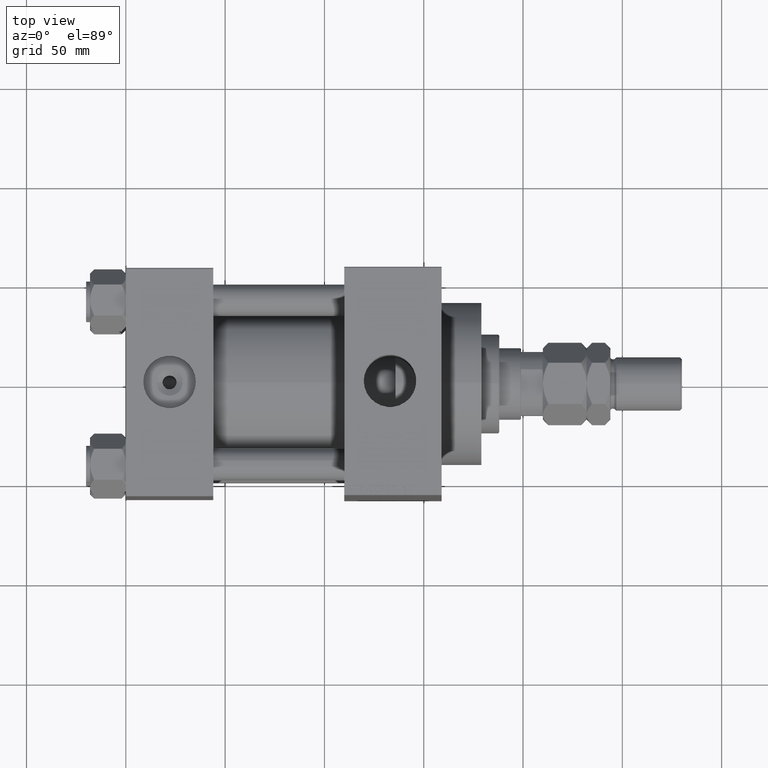
[diagram: clean part render]
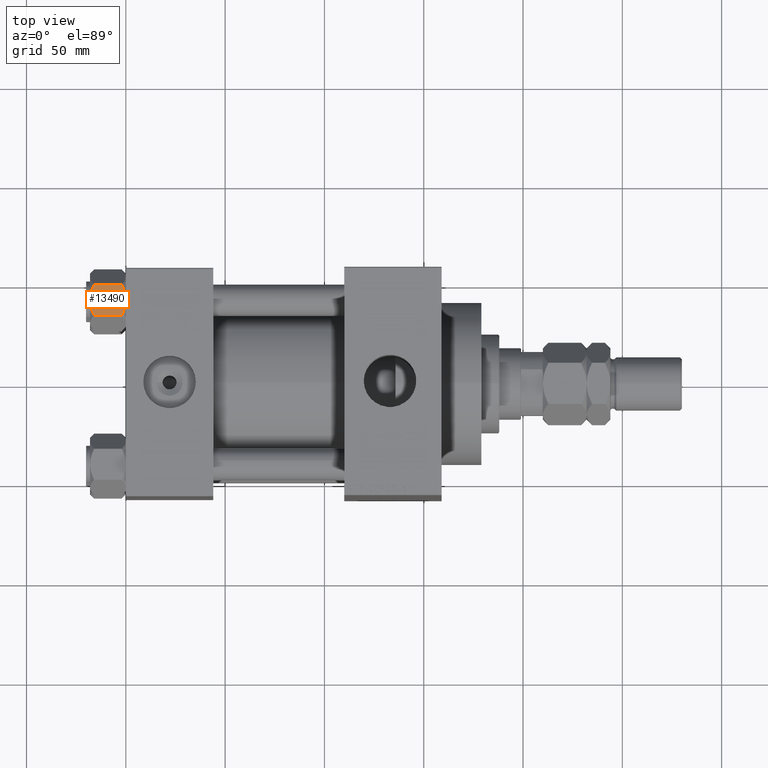
[diagram: same view with one face highlighted and labeled with its STEP entity id]
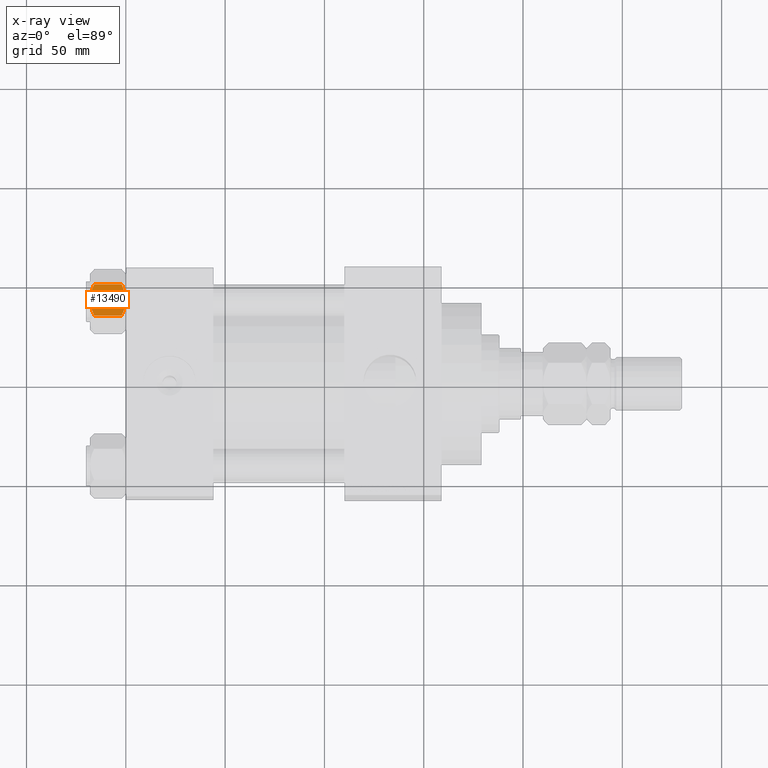
[diagram: x-ray of the same camera — body ghosted, the highlighted face saturated]
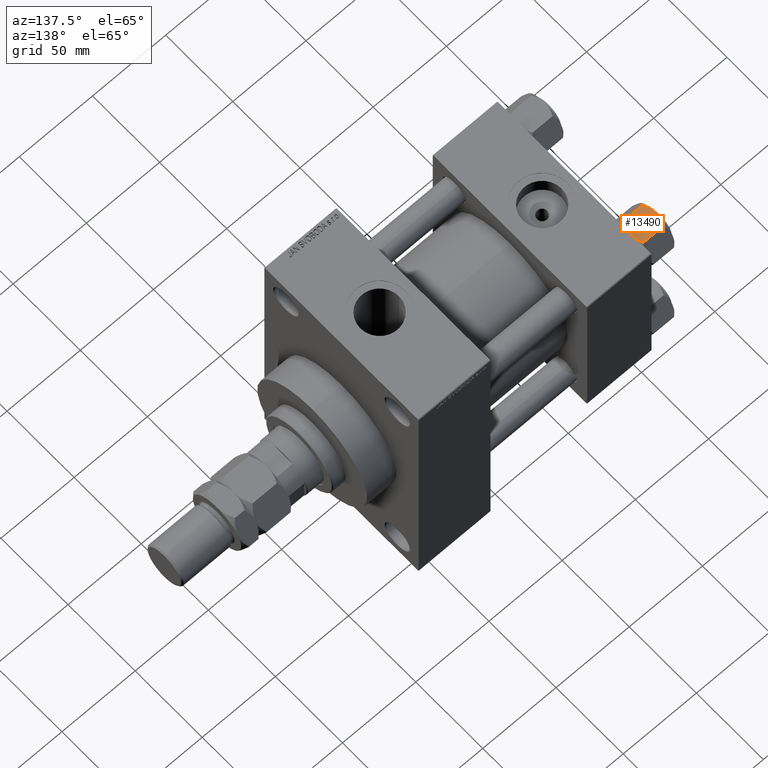
[diagram: same view with one face highlighted and labeled with its STEP entity id]
A machine part, top view. The second image highlights one B-rep face of the part: STEP entity #13490.
The next image is the same camera in x-ray: the body ghosted, the highlighted face saturated — about 0% of this face is hidden behind the body in this view.
A second angle (auxiliary view) of the same face is appended — the face is thin or edge-on in the first view.
In plain terms, the highlighted planar face has unit normal (0, -0, -1).
Its self-contained STEP definition (entity closure, byte-faithful):
#862 = EDGE_CURVE ( 'NONE', #28155, #25244, #11949, .T. ) ;
#1418 = CARTESIAN_POINT ( 'NONE',  ( -7.622943475354647447, -13.52731680711293727, -16.00000000000000000 ) ) ;
#1665 = CARTESIAN_POINT ( 'NONE',  ( -0.3330234424833808937, -13.52731680711293372, -18.00000000000000711 ) ) ;
#2046 = LINE ( 'NONE', #2781, #44255 ) ;
#2781 = CARTESIAN_POINT ( 'NONE',  ( 7.810000000000002274, -13.52731680711293372, -18.00000000000000000 ) ) ;
#3211 = CARTESIAN_POINT ( 'NONE',  ( 7.030888348548065103, -13.52731680711293194, -16.29066211644969897 ) ) ;
#4917 = CARTESIAN_POINT ( 'NONE',  ( -7.030203932307581560, -13.52731680711293727, -16.29099812210860065 ) ) ;
#5002 = ORIENTED_EDGE ( 'NONE', *, *, #44592, .F. ) ;
#5147 = VECTOR ( 'NONE', #21177, 1000.000000000000000 ) ;
#5148 = CARTESIAN_POINT ( 'NONE',  ( -3.287826776903149728, -13.52731680711293727, -17.61954155462466076 ) ) ;
#5502 = B_SPLINE_CURVE_WITH_KNOTS ( 'NONE', 3,
 ( #14585, #6832, #18321, #22327, #33540, #29792, #10837, #26536, #34275, #12069, #15076, #35009 ),
 .UNSPECIFIED., .F., .F.,
 ( 4, 2, 2, 2, 2, 4 ),
 ( 0.02774433486126546416, 0.02873404020403550266, 0.02972374554680554115, 0.03170315623234561814, 0.03368256691788569512, 0.03566197760342577211 ),
 .UNSPECIFIED. ) ;
#5509 = EDGE_CURVE ( 'NONE', #29761, #26828, #33138, .T. ) ;
#5660 = CARTESIAN_POINT ( 'NONE',  ( 7.622943475354652776, -13.52731680711293372, -16.00000000000000000 ) ) ;
#6832 = CARTESIAN_POINT ( 'NONE',  ( 0.3330234424833860007, -13.52731680711293727, 1.736982230502816853E-15 ) ) ;
#6863 = EDGE_CURVE ( 'NONE', #21072, #39006, #16112, .T. ) ;
#7401 = EDGE_CURVE ( 'NONE', #39271, #18278, #31182, .T. ) ;
#7428 = CARTESIAN_POINT ( 'NONE',  ( -7.809999999999999609, -13.52731680711293727, -16.00000000000000000 ) ) ;
#7732 = DIRECTION ( 'NONE',  ( -1.000000000000000000, -2.221156819432531199E-16, 0.000000000000000000 ) ) ;
#8321 = B_SPLINE_CURVE_WITH_KNOTS ( 'NONE', 3,
 ( #21931, #3211, #48832, #14686, #29899, #45097, #28908, #44107 ),
 .UNSPECIFIED., .F., .F.,
 ( 4, 2, 2, 4 ),
 ( 0.01980594295952729095, 0.02179054093496183078, 0.02377513891039637062, 0.02774433486126545376 ),
 .UNSPECIFIED. ) ;
#8487 = CARTESIAN_POINT ( 'NONE',  ( -7.622943475354647447, -13.52731680711293727, -16.00000000000000000 ) ) ;
#8498 = CARTESIAN_POINT ( 'NONE',  ( -2.638177715023105385, -13.52731680711294082, -0.2001540676698838062 ) ) ;
#8578 = EDGE_CURVE ( 'NONE', #18278, #32897, #8321, .T. ) ;
#8642 = VECTOR ( 'NONE', #38137, 1000.000000000000000 ) ;
#10154 = ORIENTED_EDGE ( 'NONE', *, *, #7401, .F. ) ;
#10837 = CARTESIAN_POINT ( 'NONE',  ( 3.287826776903156833, -13.52731680711293194, -0.3804584453753362960 ) ) ;
#10855 = ORIENTED_EDGE ( 'NONE', *, *, #43405, .F. ) ;
#11507 = CARTESIAN_POINT ( 'NONE',  ( -4.553769687922305742, -13.52731680711294082, -0.7327291995145158721 ) ) ;
#11949 = LINE ( 'NONE', #23423, #8642 ) ;
#12002 = CARTESIAN_POINT ( 'NONE',  ( -7.622943475354647447, -13.52731680711293727, -2.000000000000000000 ) ) ;
#12069 = CARTESIAN_POINT ( 'NONE',  ( 6.422751913021828685, -13.52731680711293549, -1.436509110925896948 ) ) ;
#13214 = ORIENTED_EDGE ( 'NONE', *, *, #8578, .F. ) ;
#13490 = ADVANCED_FACE ( 'NONE', ( #14167 ), #17409, .F. ) ;
#14167 = FACE_OUTER_BOUND ( 'NONE', #32334, .T. ) ;
#14585 = CARTESIAN_POINT ( 'NONE',  ( 3.004629197474319246E-15, -13.52731680711293727, 0.000000000000000000 ) ) ;
#14686 = CARTESIAN_POINT ( 'NONE',  ( 5.189513245496335969, -13.52731680711293194, -17.04988915682674033 ) ) ;
#15076 = CARTESIAN_POINT ( 'NONE',  ( 7.030203932307590442, -13.52731680711293727, -1.709001877891394017 ) ) ;
#16112 = LINE ( 'NONE', #23839, #46965 ) ;
#16392 = CARTESIAN_POINT ( 'NONE',  ( -1.333889873825130579, -13.52731680711293549, -17.93843358996560866 ) ) ;
#17409 = PLANE ( 'NONE',  #46353 ) ;
#18278 = VERTEX_POINT ( 'NONE', #5660 ) ;
#18321 = CARTESIAN_POINT ( 'NONE',  ( 0.6693083573771232420, -13.52731680711293372, -0.01249333081107902900 ) ) ;
#18569 = EDGE_CURVE ( 'NONE', #39271, #25244, #2046, .T. ) ;
#21072 = VERTEX_POINT ( 'NONE', #34123 ) ;
#21177 = DIRECTION ( 'NONE',  ( -0.000000000000000000, -0.000000000000000000, 1.000000000000000000 ) ) ;
#21431 = LINE ( 'NONE', #29385, #5147 ) ;
#21931 = CARTESIAN_POINT ( 'NONE',  ( 7.622943475354652776, -13.52731680711293372, -16.00000000000000000 ) ) ;
#22327 = CARTESIAN_POINT ( 'NONE',  ( 1.333889873825135686, -13.52731680711293549, -0.06156641003439144999 ) ) ;
#22490 = CARTESIAN_POINT ( 'NONE',  ( 7.810000000000002274, -13.52731680711293372, -16.00000000000000000 ) ) ;
#23423 = CARTESIAN_POINT ( 'NONE',  ( 7.810000000000002274, -13.52731680711293372, -1.999999999999998224 ) ) ;
#23678 = CARTESIAN_POINT ( 'NONE',  ( 7.810000000000002274, -13.52731680711293372, -16.00000000000000000 ) ) ;
#23727 = CARTESIAN_POINT ( 'NONE',  ( -1.335584685993413956, -13.52731680711294082, 1.666960840196463265E-15 ) ) ;
#23839 = CARTESIAN_POINT ( 'NONE',  ( 7.810000000000002274, -13.52731680711293372, -1.999999999999998224 ) ) ;
#23885 = CARTESIAN_POINT ( 'NONE',  ( -6.422751913021825132, -13.52731680711293905, -16.56349088907410305 ) ) ;
#24123 = CARTESIAN_POINT ( 'NONE',  ( -1.663410456966171180, -13.52731680711293549, -17.90195050864300796 ) ) ;
#25244 = VERTEX_POINT ( 'NONE', #43096 ) ;
#26536 = CARTESIAN_POINT ( 'NONE',  ( 4.557734399832416905, -13.52731680711293016, -0.7341470174115138914 ) ) ;
#26828 = VERTEX_POINT ( 'NONE', #7428 ) ;
#27614 = CARTESIAN_POINT ( 'NONE',  ( -2.644243758052987836, -13.52731680711293549, -17.75917188019760218 ) ) ;
#28155 = VERTEX_POINT ( 'NONE', #31320 ) ;
#28347 = CARTESIAN_POINT ( 'NONE',  ( -0.6693083573771178019, -13.52731680711293727, -17.98750666918892449 ) ) ;
#28596 = CARTESIAN_POINT ( 'NONE',  ( 3.004629197474319246E-15, -13.52731680711293727, -18.00000000000000000 ) ) ;
#28908 = CARTESIAN_POINT ( 'NONE',  ( 1.335584685993418619, -13.52731680711293372, -18.00000000000000355 ) ) ;
#29385 = CARTESIAN_POINT ( 'NONE',  ( -7.809999999999999609, -13.52731680711293727, -18.00000000000000000 ) ) ;
#29392 = DIRECTION ( 'NONE',  ( -1.000000000000000000, -2.221156819432531199E-16, 0.000000000000000000 ) ) ;
#29761 = VERTEX_POINT ( 'NONE', #8487 ) ;
#29792 = CARTESIAN_POINT ( 'NONE',  ( 2.644243758052992277, -13.52731680711293372, -0.2408281198023969893 ) ) ;
#29899 = CARTESIAN_POINT ( 'NONE',  ( 4.553769687922309295, -13.52731680711293194, -17.26727080048548046 ) ) ;
#30405 = ORIENTED_EDGE ( 'NONE', *, *, #37354, .F. ) ;
#30752 = ORIENTED_EDGE ( 'NONE', *, *, #5509, .F. ) ;
#31182 = LINE ( 'NONE', #22490, #43016 ) ;
#31320 = CARTESIAN_POINT ( 'NONE',  ( 7.622943475354652776, -13.52731680711293372, -2.000000000000000000 ) ) ;
#31373 = ORIENTED_EDGE ( 'NONE', *, *, #37682, .F. ) ;
#31791 = ORIENTED_EDGE ( 'NONE', *, *, #862, .F. ) ;
#31996 = ORIENTED_EDGE ( 'NONE', *, *, #6863, .F. ) ;
#32052 = VERTEX_POINT ( 'NONE', #38635 ) ;
#32334 = EDGE_LOOP ( 'NONE', ( #10154, #44481, #31791, #31373, #30405, #31996, #10855, #30752, #5002, #13214 ) ) ;
#32629 = DIRECTION ( 'NONE',  ( -2.221156819432531199E-16, 1.000000000000000000, 0.000000000000000000 ) ) ;
#32897 = VERTEX_POINT ( 'NONE', #46241 ) ;
#33138 = LINE ( 'NONE', #48327, #47708 ) ;
#33540 = CARTESIAN_POINT ( 'NONE',  ( 1.663410456966175843, -13.52731680711293372, -0.09804949135698878826 ) ) ;
#33979 = CARTESIAN_POINT ( 'NONE',  ( -7.622943475354647447, -13.52731680711293727, -2.000000000000000000 ) ) ;
#34123 = CARTESIAN_POINT ( 'NONE',  ( -7.809999999999999609, -13.52731680711293727, -1.999999999999998224 ) ) ;
#34275 = CARTESIAN_POINT ( 'NONE',  ( 5.184073258379408244, -13.52731680711293372, -0.9481437906500832513 ) ) ;
#34692 = CARTESIAN_POINT ( 'NONE',  ( -7.030888348548060662, -13.52731680711294082, -1.709337883550297699 ) ) ;
#34942 = CARTESIAN_POINT ( 'NONE',  ( -5.189513245496330640, -13.52731680711293905, -0.9501108431732574466 ) ) ;
#35009 = CARTESIAN_POINT ( 'NONE',  ( 7.622943475354652776, -13.52731680711293372, -2.000000000000000000 ) ) ;
#37354 = EDGE_CURVE ( 'NONE', #39006, #32052, #41201, .T. ) ;
#37682 = EDGE_CURVE ( 'NONE', #32052, #28155, #5502, .T. ) ;
#38137 = DIRECTION ( 'NONE',  ( 1.000000000000000000, 2.221156819432531199E-16, -0.000000000000000000 ) ) ;
#38635 = CARTESIAN_POINT ( 'NONE',  ( 3.004629197474319246E-15, -13.52731680711293727, 0.000000000000000000 ) ) ;
#38927 = CARTESIAN_POINT ( 'NONE',  ( 3.004629197474319246E-15, -13.52731680711293727, 0.000000000000000000 ) ) ;
#39006 = VERTEX_POINT ( 'NONE', #33979 ) ;
#39271 = VERTEX_POINT ( 'NONE', #23678 ) ;
#41201 = B_SPLINE_CURVE_WITH_KNOTS ( 'NONE', 3,
 ( #12002, #34692, #45652, #34942, #11507, #8498, #23727, #38927 ),
 .UNSPECIFIED., .F., .F.,
 ( 4, 2, 2, 4 ),
 ( 0.01980594295952729095, 0.02179054093496183425, 0.02377513891039637756, 0.02774433486126546416 ),
 .UNSPECIFIED. ) ;
#42427 = B_SPLINE_CURVE_WITH_KNOTS ( 'NONE', 3,
 ( #28596, #1665, #28347, #16392, #24123, #27614, #5148, #42829, #43552, #23885, #4917, #1418 ),
 .UNSPECIFIED., .F., .F.,
 ( 4, 2, 2, 2, 2, 4 ),
 ( 0.02774433486126545376, 0.02873404020403549225, 0.02972374554680553074, 0.03170315623234560426, 0.03368256691788568125, 0.03566197760342575823 ),
 .UNSPECIFIED. ) ;
#42829 = CARTESIAN_POINT ( 'NONE',  ( -4.557734399832409800, -13.52731680711293905, -17.26585298258849122 ) ) ;
#43016 = VECTOR ( 'NONE', #7732, 1000.000000000000000 ) ;
#43096 = CARTESIAN_POINT ( 'NONE',  ( 7.810000000000002274, -13.52731680711293372, -1.999999999999998224 ) ) ;
#43405 = EDGE_CURVE ( 'NONE', #26828, #21072, #21431, .T. ) ;
#43552 = CARTESIAN_POINT ( 'NONE',  ( -5.184073258379402027, -13.52731680711293905, -17.05185620934992130 ) ) ;
#43699 = DIRECTION ( 'NONE',  ( -0.000000000000000000, -0.000000000000000000, 1.000000000000000000 ) ) ;
#44107 = CARTESIAN_POINT ( 'NONE',  ( 3.004629197474319246E-15, -13.52731680711293727, -18.00000000000000000 ) ) ;
#44255 = VECTOR ( 'NONE', #43699, 1000.000000000000000 ) ;
#44481 = ORIENTED_EDGE ( 'NONE', *, *, #18569, .T. ) ;
#44575 = DIRECTION ( 'NONE',  ( -1.000000000000000000, -2.221156819432531199E-16, 0.000000000000000000 ) ) ;
#44592 = EDGE_CURVE ( 'NONE', #32897, #29761, #42427, .T. ) ;
#45097 = CARTESIAN_POINT ( 'NONE',  ( 2.638177715023113379, -13.52731680711293549, -17.79984593233011481 ) ) ;
#45652 = CARTESIAN_POINT ( 'NONE',  ( -6.427364677720470709, -13.52731680711293727, -1.438506937155139109 ) ) ;
#45764 = DIRECTION ( 'NONE',  ( 1.000000000000000000, 2.221156819432531199E-16, -0.000000000000000000 ) ) ;
#46241 = CARTESIAN_POINT ( 'NONE',  ( 3.004629197474319246E-15, -13.52731680711293727, -18.00000000000000000 ) ) ;
#46353 = AXIS2_PLACEMENT_3D ( 'NONE', #48060, #32629, #44575 ) ;
#46965 = VECTOR ( 'NONE', #45764, 1000.000000000000000 ) ;
#47708 = VECTOR ( 'NONE', #29392, 1000.000000000000000 ) ;
#48060 = CARTESIAN_POINT ( 'NONE',  ( 7.810000000000002274, -13.52731680711293372, -18.00000000000000000 ) ) ;
#48327 = CARTESIAN_POINT ( 'NONE',  ( 7.810000000000002274, -13.52731680711293372, -16.00000000000000000 ) ) ;
#48832 = CARTESIAN_POINT ( 'NONE',  ( 6.427364677720476926, -13.52731680711293549, -16.56149306284486755 ) ) ;